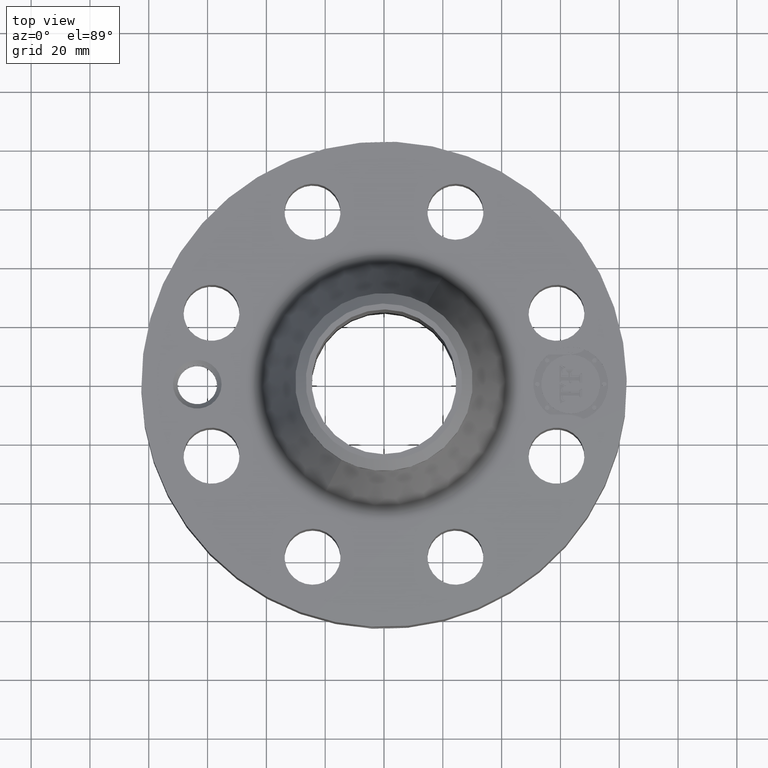
[diagram: clean part render]
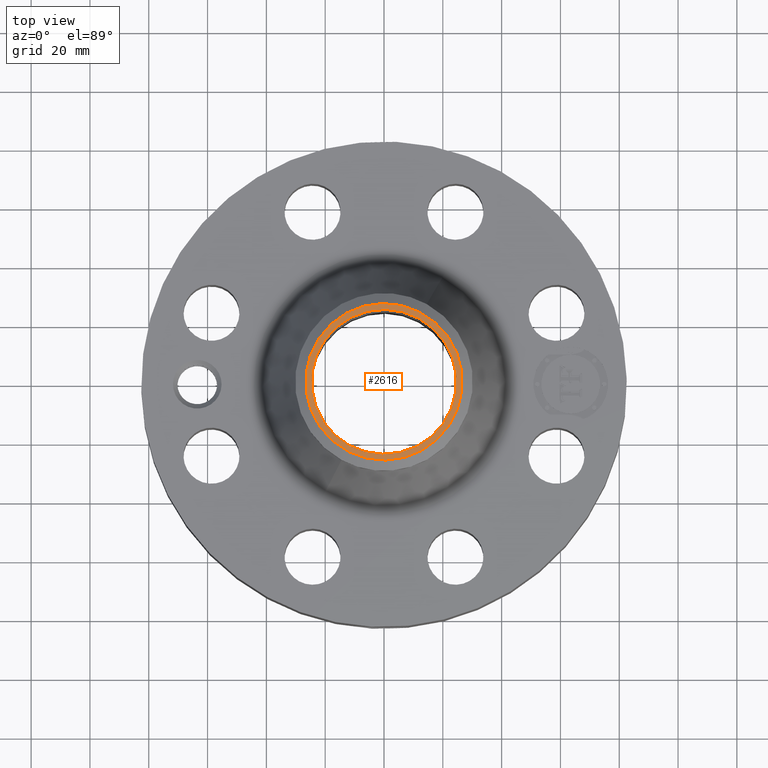
[diagram: same view with one face highlighted and labeled with its STEP entity id]
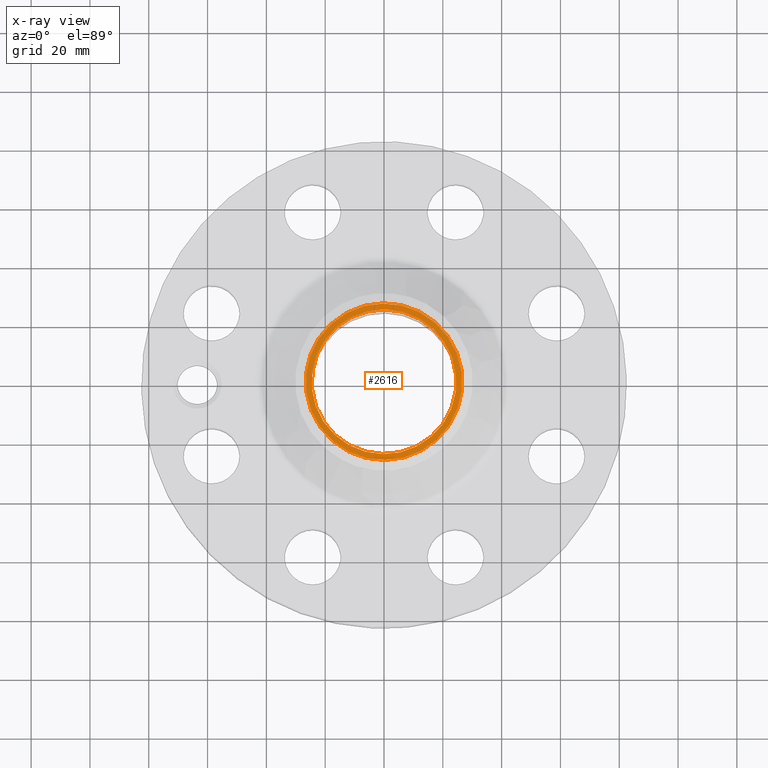
[diagram: x-ray of the same camera — body ghosted, the highlighted face saturated]
A machine part, top view. The second image highlights one B-rep face of the part: STEP entity #2616.
The next image is the same camera in x-ray: the body ghosted, the highlighted face saturated — about 0% of this face is hidden behind the body in this view.
In plain terms, the highlighted planar face has unit normal (0, 0, -1).
Its self-contained STEP definition (entity closure, byte-faithful):
#1359=AXIS2_PLACEMENT_3D('Circle Axis2P3D',#1357,#1358,$) ;
#1427=AXIS2_PLACEMENT_3D('Circle Axis2P3D',#1425,#1426,$) ;
#2592=AXIS2_PLACEMENT_3D('Plane Axis2P3D',#2589,#2590,#2591) ;
#2596=AXIS2_PLACEMENT_3D('Circle Axis2P3D',#2594,#2595,$) ;
#2605=AXIS2_PLACEMENT_3D('Circle Axis2P3D',#2603,#2604,$) ;
#1357=CARTESIAN_POINT('Axis2P3D Location',(0.,0.,3.63000000001)) ;
#1361=CARTESIAN_POINT('Vertex',(0.464803059679,0.850816293756,3.63000000001)) ;
#1363=CARTESIAN_POINT('Vertex',(-0.464803059679,-0.850816293756,3.63000000001)) ;
#1425=CARTESIAN_POINT('Axis2P3D Location',(0.,0.,3.63000000001)) ;
#2589=CARTESIAN_POINT('Axis2P3D Location',(0.,1.19,3.63000000001)) ;
#2594=CARTESIAN_POINT('Axis2P3D Location',(0.,0.,3.63000000001)) ;
#2598=CARTESIAN_POINT('Vertex',(0.502553102088,-0.919917282881,3.63000000001)) ;
#2600=CARTESIAN_POINT('Vertex',(-0.502553102088,0.919917282881,3.63000000001)) ;
#2603=CARTESIAN_POINT('Axis2P3D Location',(0.,0.,3.63000000001)) ;
#1358=DIRECTION('Axis2P3D Direction',(0.,0.,-0.0393700787402)) ;
#1426=DIRECTION('Axis2P3D Direction',(0.,0.,-0.0393700787402)) ;
#2590=DIRECTION('Axis2P3D Direction',(0.,0.,-0.0393700787402)) ;
#2591=DIRECTION('Axis2P3D XDirection',(0.0393700787402,0.,0.)) ;
#2595=DIRECTION('Axis2P3D Direction',(0.,0.,-0.0393700787402)) ;
#2604=DIRECTION('Axis2P3D Direction',(0.,0.,-0.0393700787402)) ;
#2609=ORIENTED_EDGE('',*,*,#2602,.T.) ;
#2610=ORIENTED_EDGE('',*,*,#2607,.T.) ;
#2613=ORIENTED_EDGE('',*,*,#1429,.T.) ;
#2614=ORIENTED_EDGE('',*,*,#1365,.T.) ;
#2615=FACE_BOUND('',#2612,.T.) ;
#2616=ADVANCED_FACE('PartBody',(#2611,#2615),#2593,.F.) ;
#1360=CIRCLE('generated circle',#1359,0.969500000004) ;
#1428=CIRCLE('generated circle',#1427,0.969500000004) ;
#2597=CIRCLE('generated circle',#2596,1.04824015748) ;
#2606=CIRCLE('generated circle',#2605,1.04824015748) ;
#1365=EDGE_CURVE('',#1362,#1364,#1360,.T.) ;
#1429=EDGE_CURVE('',#1364,#1362,#1428,.T.) ;
#2602=EDGE_CURVE('',#2599,#2601,#2597,.F.) ;
#2607=EDGE_CURVE('',#2601,#2599,#2606,.F.) ;
#2608=EDGE_LOOP('',(#2609,#2610)) ;
#2612=EDGE_LOOP('',(#2613,#2614)) ;
#2611=FACE_OUTER_BOUND('',#2608,.T.) ;
#2593=PLANE('',#2592) ;
#1362=VERTEX_POINT('',#1361) ;
#1364=VERTEX_POINT('',#1363) ;
#2599=VERTEX_POINT('',#2598) ;
#2601=VERTEX_POINT('',#2600) ;